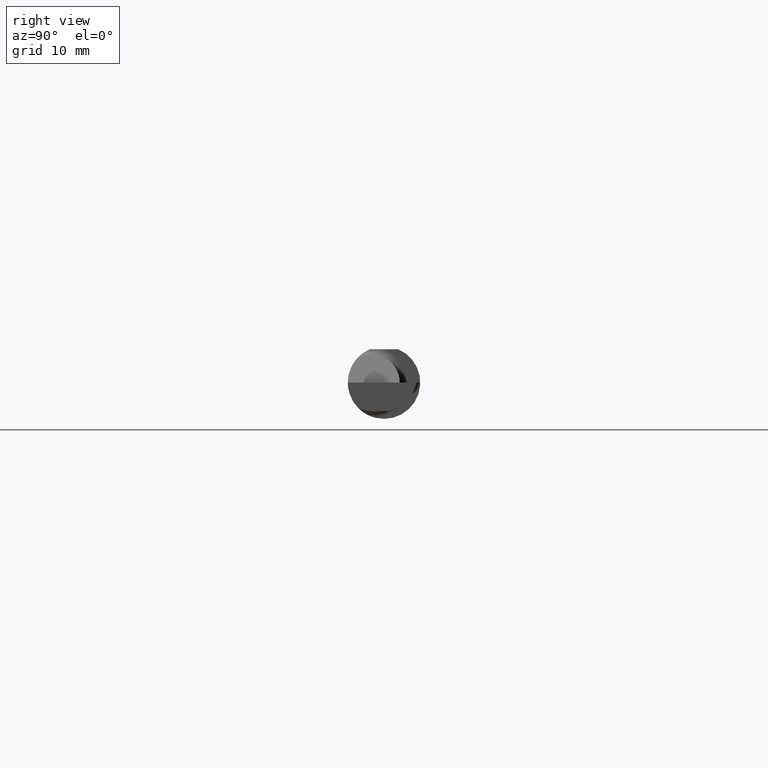
[diagram: clean part render]
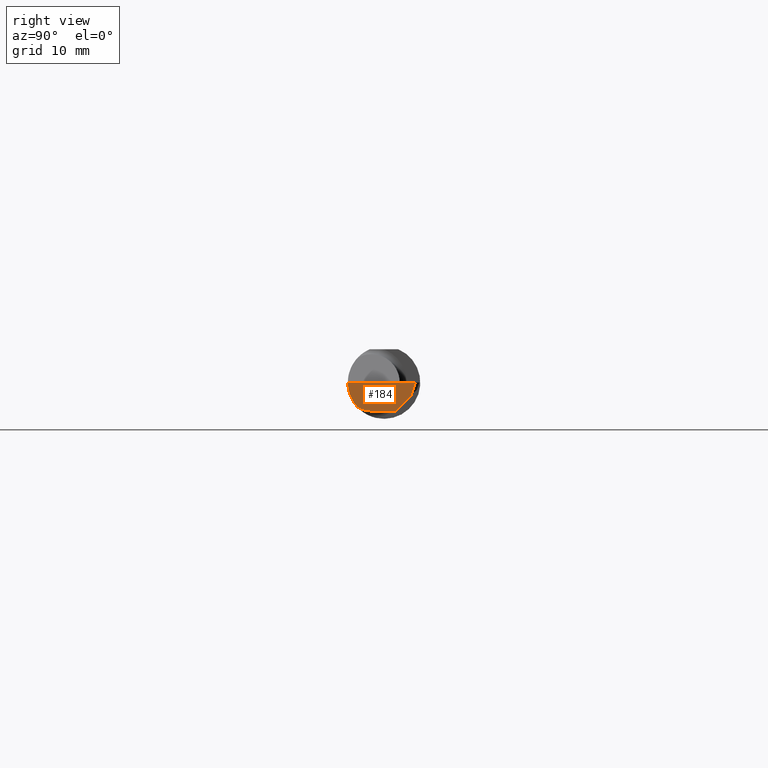
[diagram: same view with one face highlighted and labeled with its STEP entity id]
A machine part, right view. The second image highlights one B-rep face of the part: STEP entity #184.
In plain terms, the highlighted planar face has unit normal (-0.9992, 0.0174, 0.0349).
Its self-contained STEP definition (entity closure, byte-faithful):
#32 = CARTESIAN_POINT ( 'NONE',  ( 2.499988124127622946, 0.1084461686550173415, 0.000000000000000000 ) ) ;
#33 = LINE ( 'NONE', #462, #604 ) ;
#69 = FACE_OUTER_BOUND ( 'NONE', #254, .T. ) ;
#105 = CARTESIAN_POINT ( 'NONE',  ( 2.493958780969530498, -0.04088506879356339913, -0.09800000000000001765 ) ) ;
#111 = DIRECTION ( 'NONE',  ( -0.01745240643727864055, -0.9998476951563912696, 0.000000000000000000 ) ) ;
#123 = CARTESIAN_POINT ( 'NONE',  ( 2.495818186131870231, 0.04836818798314927031, -0.08936794929789945718 ) ) ;
#130 =( BOUNDED_CURVE ( )  B_SPLINE_CURVE ( 3, ( #290, #201, #149, #414 ),
 .UNSPECIFIED., .F., .T. ) 
 B_SPLINE_CURVE_WITH_KNOTS ( ( 4, 4 ),
 ( 0.3451966888489937380, 1.107331509589511098 ),
 .UNSPECIFIED. ) 
 CURVE ( )  GEOMETRIC_REPRESENTATION_ITEM ( )  RATIONAL_B_SPLINE_CURVE ( ( 1.000000000000000000, 0.9521787881681382792, 0.9521787881681382792, 1.000000000000000000 ) ) 
 REPRESENTATION_ITEM ( '' )  );
#135 = EDGE_CURVE ( 'NONE', #607, #621, #446, .T. ) ;
#137 = VERTEX_POINT ( 'NONE', #272 ) ;
#149 = CARTESIAN_POINT ( 'NONE',  ( 2.494776490973177552, -0.1250000000000000278, -0.03254916765648421806 ) ) ;
#172 = EDGE_CURVE ( 'NONE', #509, #671, #442, .T. ) ;
#184 = ADVANCED_FACE ( 'NONE', ( #69 ), #324, .F. ) ;
#201 = CARTESIAN_POINT ( 'NONE',  ( 2.493932522392287687, -0.1128945894460738480, -0.06276352435079118885 ) ) ;
#210 = CARTESIAN_POINT ( 'NONE',  ( 2.495366029356153703, 0.03973613728104880699, -0.09800000000000001765 ) ) ;
#246 = CARTESIAN_POINT ( 'NONE',  ( 2.493620144954195261, -0.06028551311893192571, -0.09800000000000008704 ) ) ;
#254 = EDGE_LOOP ( 'NONE', ( #590, #635, #452, #455, #477, #307 ) ) ;
#272 = CARTESIAN_POINT ( 'NONE',  ( 2.493904409643075581, -0.04399999999999996969, -0.09800000000000001765 ) ) ;
#290 = CARTESIAN_POINT ( 'NONE',  ( 2.493502479154699358, -0.09042045454545434569, -0.08630840862739518060 ) ) ;
#292 = AXIS2_PLACEMENT_3D ( 'NONE', #598, #651, #484 ) ;
#299 = CARTESIAN_POINT ( 'NONE',  ( 2.493502479154699358, -0.09042045454545434569, -0.08630840862739518060 ) ) ;
#307 = ORIENTED_EDGE ( 'NONE', *, *, #686, .F. ) ;
#324 = PLANE ( 'NONE',  #292 ) ;
#331 = CARTESIAN_POINT ( 'NONE',  ( 2.493502479154699358, -0.09042045454545434569, -0.08630840862739518060 ) ) ;
#355 = EDGE_CURVE ( 'NONE', #607, #509, #33, .T. ) ;
#366 = LINE ( 'NONE', #105, #538 ) ;
#367 = EDGE_CURVE ( 'NONE', #551, #137, #441, .T. ) ;
#408 = CARTESIAN_POINT ( 'NONE',  ( 2.498159429761094508, 0.09306448537118866549, -0.04467165190985956935 ) ) ;
#414 = CARTESIAN_POINT ( 'NONE',  ( 2.495913306096507522, -0.1250000000000000000, 0.000000000000000000 ) ) ;
#420 = CARTESIAN_POINT ( 'NONE',  ( 2.493904409643075581, -0.04399999999999996969, -0.09800000000000001765 ) ) ;
#441 =( BOUNDED_CURVE ( )  B_SPLINE_CURVE ( 3, ( #331, #553, #246, #420 ),
 .UNSPECIFIED., .F., .F. ) 
 B_SPLINE_CURVE_WITH_KNOTS ( ( 4, 4 ),
 ( 6.253187659403682375, 6.746650124384973246 ),
 .UNSPECIFIED. ) 
 CURVE ( )  GEOMETRIC_REPRESENTATION_ITEM ( )  RATIONAL_B_SPLINE_CURVE ( ( 1.000000000000000000, 0.9798106333074687591, 0.9798106333074687591, 1.000000000000000000 ) ) 
 REPRESENTATION_ITEM ( '' )  );
#442 = LINE ( 'NONE', #648, #482 ) ;
#446 = LINE ( 'NONE', #123, #595 ) ;
#452 = ORIENTED_EDGE ( 'NONE', *, *, #172, .T. ) ;
#454 = DIRECTION ( 'NONE',  ( 0.03867711768363092661, 0.3253245514560478280, 0.9448111011136606230 ) ) ;
#455 = ORIENTED_EDGE ( 'NONE', *, *, #561, .F. ) ;
#462 = CARTESIAN_POINT ( 'NONE',  ( 2.499995298646839448, 0.1085065156349822868, 0.0001752603556491070331 ) ) ;
#477 = ORIENTED_EDGE ( 'NONE', *, *, #367, .T. ) ;
#482 = VECTOR ( 'NONE', #111, 39.37007874015748854 ) ;
#483 = DIRECTION ( 'NONE',  ( -0.01745240643727864055, -0.9998476951563912696, 0.000000000000000000 ) ) ;
#484 = DIRECTION ( 'NONE',  ( 0.03490480639812536257, 0.000000000000000000, 0.9993906415863165194 ) ) ;
#509 = VERTEX_POINT ( 'NONE', #32 ) ;
#538 = VECTOR ( 'NONE', #483, 39.37007874015748143 ) ;
#539 = CARTESIAN_POINT ( 'NONE',  ( 2.495913306096507522, -0.1250000000000000000, 0.000000000000000000 ) ) ;
#542 = DIRECTION ( 'NONE',  ( -0.03701368837992599636, -0.7066222423871549863, -0.7066222423871628688 ) ) ;
#551 = VERTEX_POINT ( 'NONE', #299 ) ;
#553 = CARTESIAN_POINT ( 'NONE',  ( 2.493483407481765113, -0.07607783494366271437, -0.09402249966297457351 ) ) ;
#561 = EDGE_CURVE ( 'NONE', #551, #671, #130, .T. ) ;
#590 = ORIENTED_EDGE ( 'NONE', *, *, #135, .F. ) ;
#595 = VECTOR ( 'NONE', #542, 39.37007874015748854 ) ;
#598 = CARTESIAN_POINT ( 'NONE',  ( 2.499998056271878877, 0.1090151808183310173, 0.000000000000000000 ) ) ;
#604 = VECTOR ( 'NONE', #454, 39.37007874015748143 ) ;
#607 = VERTEX_POINT ( 'NONE', #408 ) ;
#621 = VERTEX_POINT ( 'NONE', #210 ) ;
#635 = ORIENTED_EDGE ( 'NONE', *, *, #355, .T. ) ;
#648 = CARTESIAN_POINT ( 'NONE',  ( 2.499998056271878877, 0.1090151808183310173, 0.000000000000000000 ) ) ;
#651 = DIRECTION ( 'NONE',  ( -0.9992386149554827179, 0.01744177490282529386, 0.03489949670250104552 ) ) ;
#671 = VERTEX_POINT ( 'NONE', #539 ) ;
#686 = EDGE_CURVE ( 'NONE', #621, #137, #366, .T. ) ;